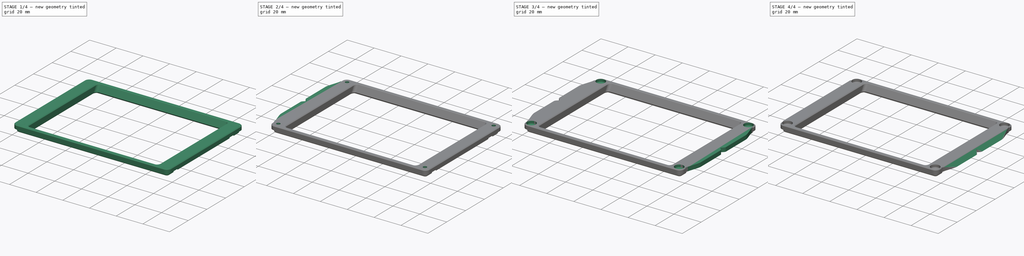
[diagram: build sequence overview — one tinted view per stage of 4, left to right]
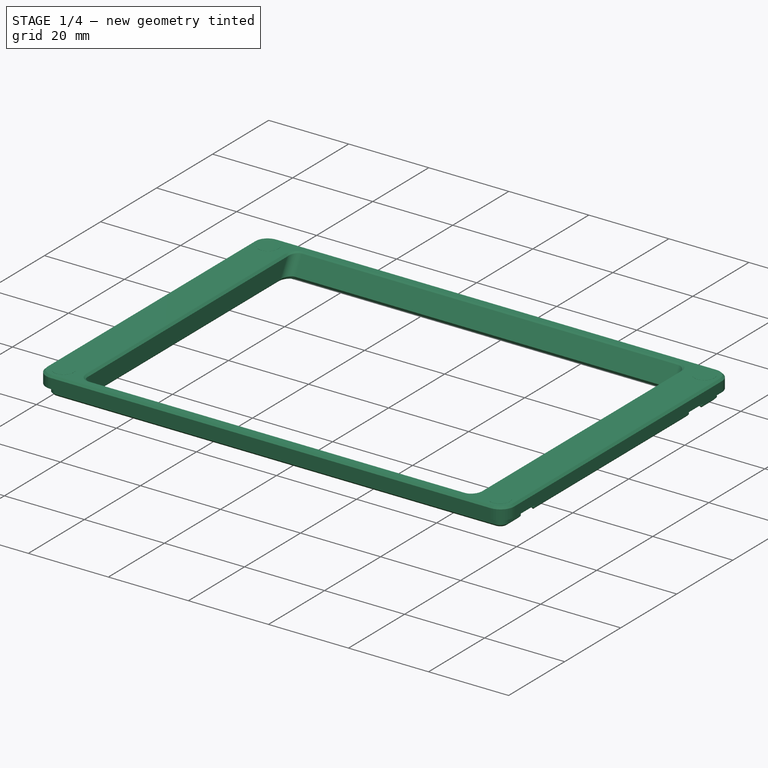
[diagram: stage 1 of 4 — iso view after this stage's code; geometry added in this stage tinted green]
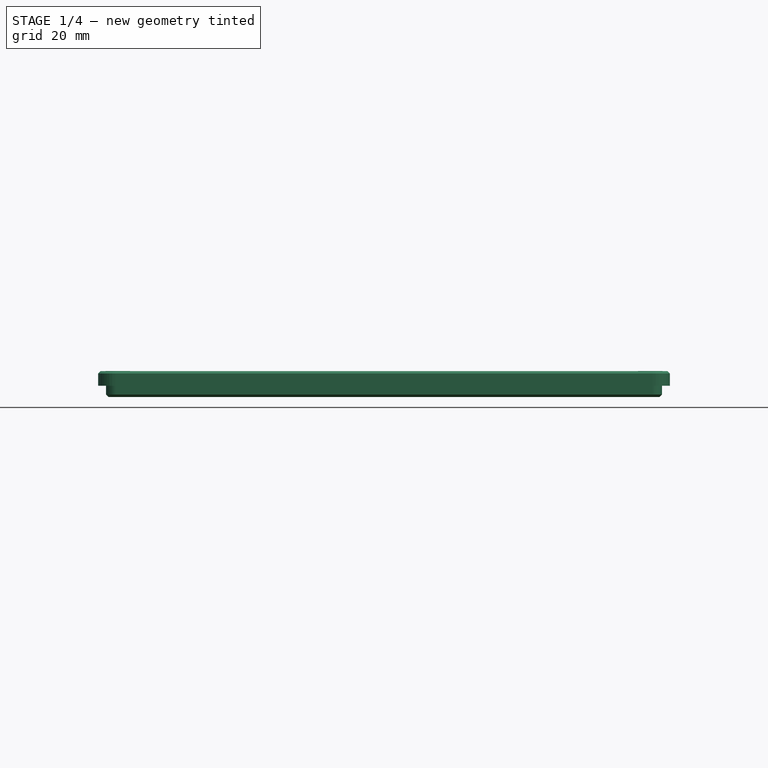
[diagram: stage 1 of 4 — front view after this stage's code; geometry added in this stage tinted green]
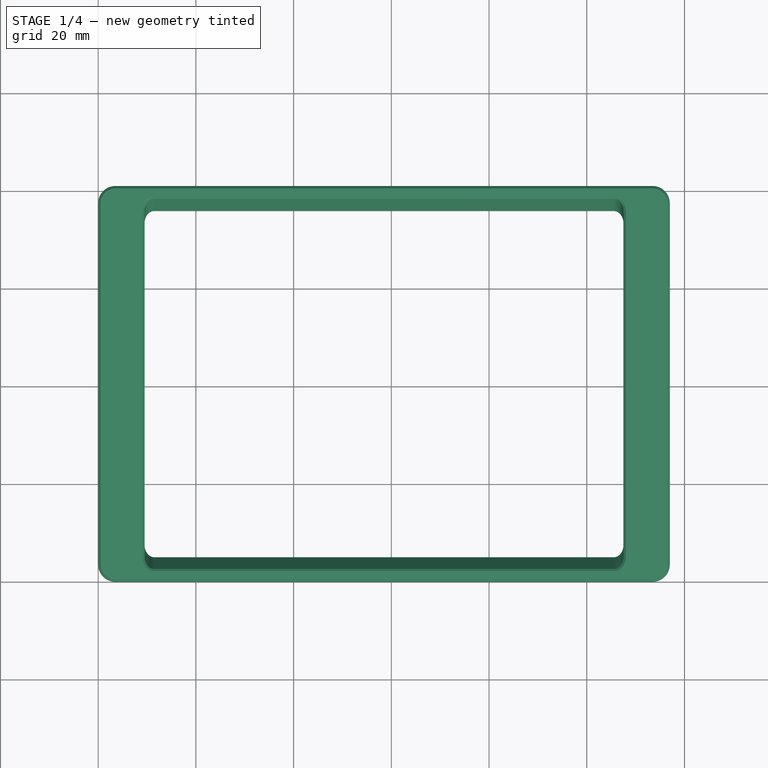
[diagram: stage 1 of 4 — top view after this stage's code; geometry added in this stage tinted green]
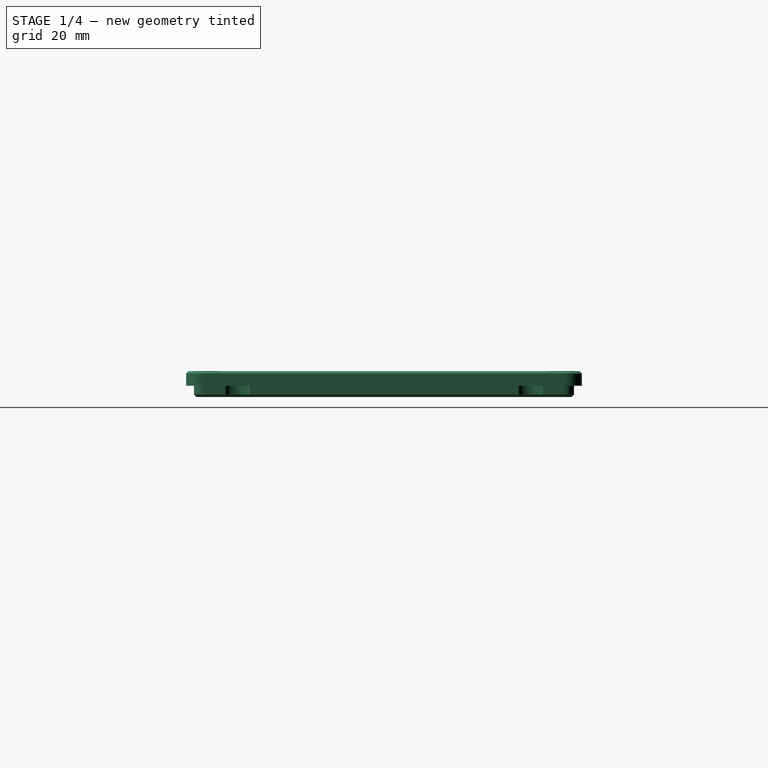
[diagram: stage 1 of 4 — right view after this stage's code; geometry added in this stage tinted green]
FCSTD DOCUMENT  (FreeCAD 1.0R39109 (Git))
Label: light-scan-mount
License: All rights reserved
LicenseURL: https://en.wikipedia.org/wiki/All_rights_reserved
objects: Sketcher::SketchObject×7, PartDesign::Pocket×3, PartDesign::Pad×2, PartDesign::Mirrored×2, Part::Feature×1, Part::Refine×1, PartDesign::FeatureBase×1, PartDesign::Plane×1, PartDesign::Chamfer×1, PartDesign::Body×1
note: 42 computed .brp shape members not serialized (recipe doc carries the construction recipe); baked Part::Feature solids carry a one-line shape summary decoded from their .brp

FEATURE [Part::Feature] _4d_p0020_diffuser_cover_plate001_solid  label="_4d_p0020_diffuser_cover_plate001 (Solid)"
  shape: bbox 117 x 81 x 5.3 mm, 3872 faces (baked)
FEATURE [Part::Refine] _4d_p0020_diffuser_cover_plate001_solid001  label="_4d_p0020_diffuser_cover_plate001 (Solid)001"
  Source = -> _4d_p0020_diffuser_cover_plate001_solid
FEATURE [PartDesign::FeatureBase] BaseFeature
  BaseFeature = -> _4d_p0020_diffuser_cover_plate001_solid001
  Suppressed = false
FEATURE [Sketcher::SketchObject] Sketch
  ArcFitTolerance = 1e-06
  AttachmentSupport = -> [XY_Plane]
  FullyConstrained = true
  MakeInternals = false
  MapMode = 5
  sketch-geometry (8):
    g0: LineSegment [constr] StartX=4 StartY=77 StartZ=0 EndX=4 EndY=4 EndZ=0
    g1: LineSegment [constr] StartX=4 StartY=4 StartZ=0 EndX=113 EndY=4 EndZ=0
    g2: LineSegment [constr] StartX=113 StartY=4 StartZ=0 EndX=113 EndY=77 EndZ=0
    g3: LineSegment [constr] StartX=113 StartY=77 StartZ=0 EndX=4 EndY=77 EndZ=0
    g4: Circle CenterX=4 CenterY=4 CenterZ=0 NormalX=0 NormalY=0 NormalZ=1 AngleXU=0 Radius=2.5
    g5: Circle CenterX=4 CenterY=77 CenterZ=0 NormalX=0 NormalY=0 NormalZ=1 AngleXU=0 Radius=2.5
    g6: Circle CenterX=113 CenterY=77 CenterZ=0 NormalX=0 NormalY=0 NormalZ=1 AngleXU=0 Radius=2.5
    g7: Circle CenterX=113 CenterY=4 CenterZ=0 NormalX=0 NormalY=0 NormalZ=1 AngleXU=0 Radius=2.5
  constraints (20):
    c: Coincident(g0,g1)
    c: Coincident(g1,g2)
    c: Coincident(g2,g3)
    c: Coincident(g3,g0)
    c: Vertical(g0)
    c: Vertical(g2)
    c: Horizontal(g1)
    c: Horizontal(g3)
    c: DistanceX(g3,g3) = 109
    c: DistanceY(g0,g0) = 73
    c: Distance(g0,g-2) = 4
    c: DistanceY(g-1,g0) = 4
    c: Coincident(g4,g0)
    c: Diameter(g4) = 5
    c: Coincident(g5,g0)
    c: Coincident(g6,g2)
    c: Coincident(g7,g1)
    c: Equal(g7,g4)
    c: Equal(g4,g5)
    c: Equal(g4,g6)
FEATURE [Sketcher::SketchObject] Sketch001
  ArcFitTolerance = 1e-06
  AttachmentSupport = -> [XY_Plane]
  FullyConstrained = true
  MakeInternals = false
  MapMode = 5
  sketch-geometry (8):
    g0: LineSegment [constr] StartX=4 StartY=77 StartZ=0 EndX=4 EndY=4 EndZ=0
    g1: LineSegment [constr] StartX=4 StartY=4 StartZ=0 EndX=113 EndY=4 EndZ=0
    g2: LineSegment [constr] StartX=113 StartY=4 StartZ=0 EndX=113 EndY=77 EndZ=0
    g3: LineSegment [constr] StartX=113 StartY=77 StartZ=0 EndX=4 EndY=77 EndZ=0
    g4: Circle CenterX=4 CenterY=4 CenterZ=0 NormalX=0 NormalY=0 NormalZ=1 AngleXU=0 Radius=1.35
    g5: Circle CenterX=4 CenterY=77 CenterZ=0 NormalX=0 NormalY=0 NormalZ=1 AngleXU=0 Radius=1.35
    g6: Circle CenterX=113 CenterY=77 CenterZ=0 NormalX=0 NormalY=0 NormalZ=1 AngleXU=0 Radius=1.35
    g7: Circle CenterX=113 CenterY=4 CenterZ=0 NormalX=0 NormalY=0 NormalZ=1 AngleXU=0 Radius=1.35
  constraints (20):
    c: Coincident(g0,g1)
    c: Coincident(g1,g2)
    c: Coincident(g2,g3)
    c: Coincident(g3,g0)
    c: Vertical(g0)
    c: Vertical(g2)
    c: Horizontal(g1)
    c: Horizontal(g3)
    c: DistanceX(g3,g3) = 109
    c: DistanceY(g0,g0) = 73
    c: Distance(g0,g-2) = 4
    c: DistanceY(g-1,g0) = 4
    c: Coincident(g4,g0)
    c: Diameter(g4) = 2.7
    c: Coincident(g5,g0)
    c: Coincident(g6,g2)
    c: Coincident(g7,g1)
    c: Equal(g7,g4)
    c: Equal(g4,g5)
    c: Equal(g4,g6)
FEATURE [PartDesign::Pad] Pad
  BaseFeature = -> BaseFeature
  Direction = (0,0,1)
  Length = 5.32
  Length2 = -3
  Profile = -> Sketch
  ReferenceAxis = -> Sketch [N_Axis]
  Refine = true
  Suppressed = false
  Type = 4
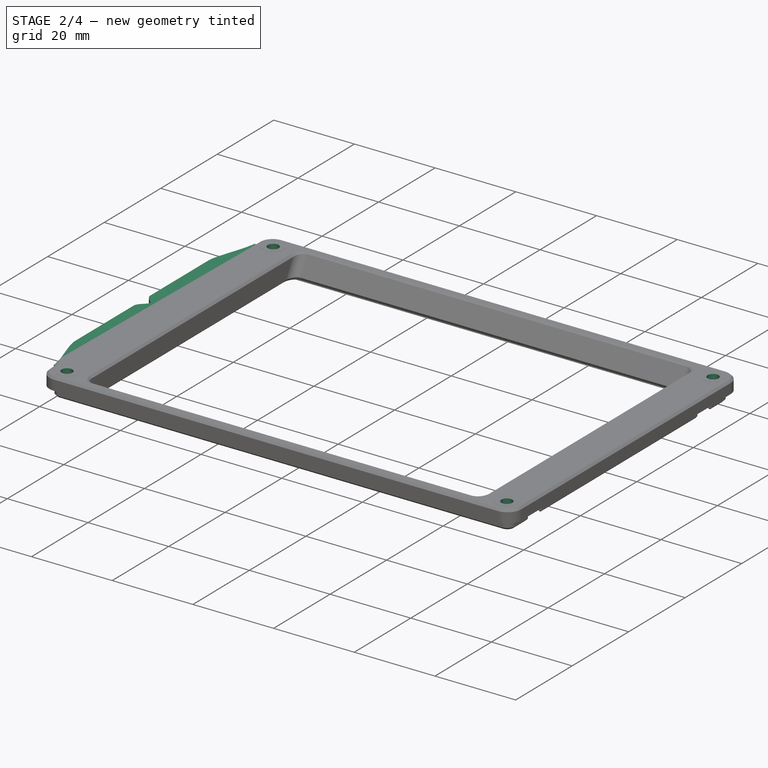
[diagram: stage 2 of 4 — iso view after this stage's code; geometry added in this stage tinted green]
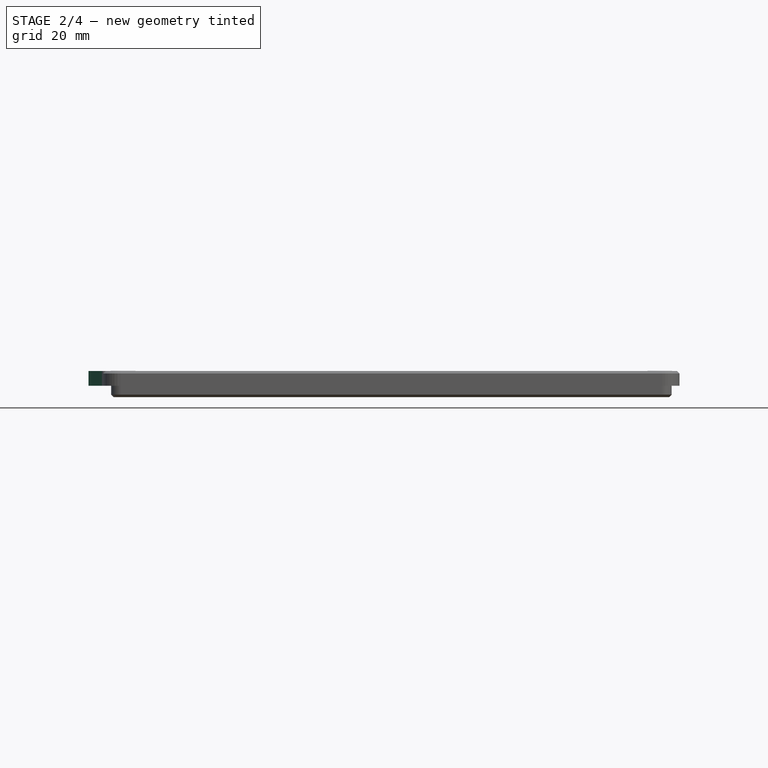
[diagram: stage 2 of 4 — front view after this stage's code; geometry added in this stage tinted green]
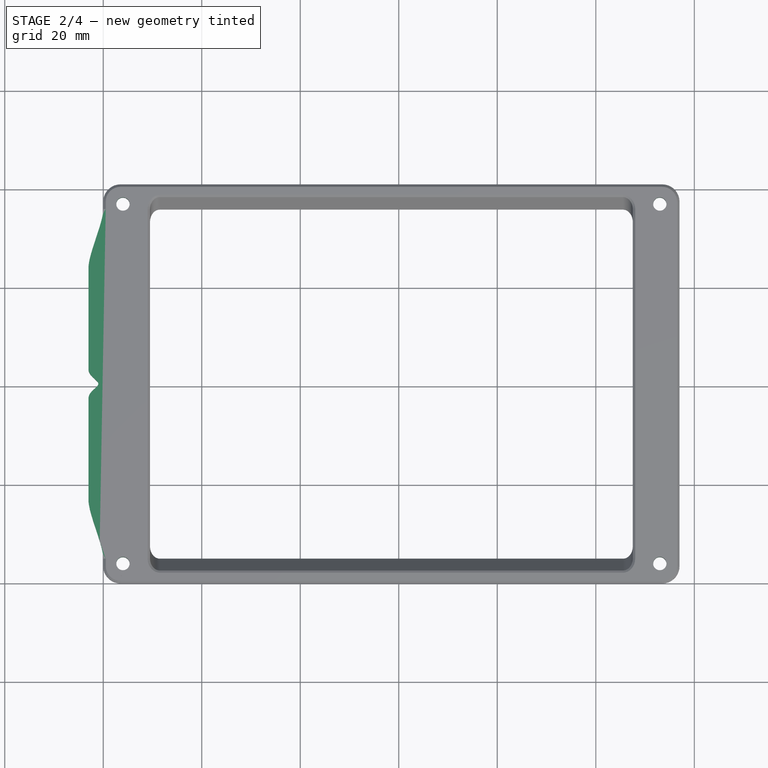
[diagram: stage 2 of 4 — top view after this stage's code; geometry added in this stage tinted green]
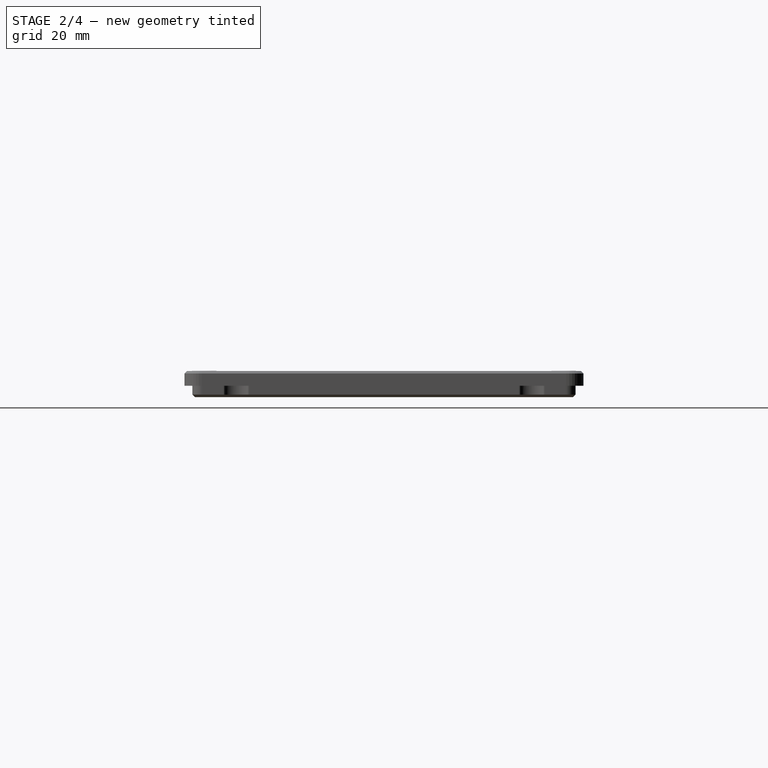
[diagram: stage 2 of 4 — right view after this stage's code; geometry added in this stage tinted green]
FEATURE [PartDesign::Pocket] Pocket
  BaseFeature = -> Pad
  Direction = (0,0,-1)
  Length = 5
  Length2 = 5
  Midplane = true
  Profile = -> Sketch001
  ReferenceAxis = -> Sketch001 [N_Axis]
  Refine = true
  Suppressed = false
  Type = 1
FEATURE [Sketcher::SketchObject] Sketch002
  ArcFitTolerance = 1e-06
  AttachmentSupport = -> [XY_Plane]
  FullyConstrained = true
  MakeInternals = false
  MapMode = 5
  sketch-geometry (31):
    g0: LineSegment [constr] StartX=0 StartY=76 StartZ=0 EndX=0 EndY=5 EndZ=0
    g1: LineSegment StartX=0 StartY=5 StartZ=0 EndX=1 EndY=5 EndZ=0
    g2: LineSegment StartX=1 StartY=5 StartZ=0 EndX=1 EndY=76 EndZ=0
    g3: LineSegment StartX=1 StartY=76 StartZ=0 EndX=0 EndY=76 EndZ=0
    g4: LineSegment [constr] StartX=-3 StartY=64 StartZ=0 EndX=-3 EndY=17 EndZ=0
    g5: LineSegment [constr] StartX=-3 StartY=40.5 StartZ=0 EndX=1 EndY=40.5 EndZ=0
    g6-g9: Circle [constr] x4 (B-spline internal-alignment scaffolding for g10; pole/knot coordinates omitted)
    g10: BSplineCurve PolesCount=4 KnotsCount=2 Degree=3 IsPeriodic=0
    g11: GeomPoint [constr] X=0 Y=76 Z=0
    g12: GeomPoint [constr] X=-3 Y=64 Z=0
    g13-g16: Circle [constr] x4 (B-spline internal-alignment scaffolding for g17; pole/knot coordinates omitted)
    g17: BSplineCurve PolesCount=4 KnotsCount=2 Degree=3 IsPeriodic=0
    g18: GeomPoint [constr] X=0 Y=5 Z=0
    g19: GeomPoint [constr] X=-3 Y=17 Z=0
    g20: LineSegment StartX=-3 StartY=17 StartZ=0 EndX=-3 EndY=37.5 EndZ=0
    g21: LineSegment StartX=-3 StartY=43.5 StartZ=0 EndX=-3 EndY=64 EndZ=0
    g22-g26: Circle [constr] x5 (B-spline internal-alignment scaffolding for g27; pole/knot coordinates omitted)
    g27: BSplineCurve PolesCount=5 KnotsCount=3 Degree=3 IsPeriodic=0
    g28: GeomPoint [constr] X=-3 Y=43.5 Z=0
    g29: GeomPoint [constr] X=-1 Y=40.5 Z=0
    g30: GeomPoint [constr] X=-3 Y=37.5 Z=0
  constraints (60):
    c: Coincident(g0,g1)
    c: Coincident(g1,g2)
    c: Coincident(g2,g3)
    c: Coincident(g3,g0)
    c: Vertical(g0)
    c: Vertical(g2)
    c: Horizontal(g1)
    c: Horizontal(g3)
    c: Vertical(g4)
    c: Symmetric(g4,g4,g5)
    c: Symmetric(g2,g2,g5)
    c: Horizontal(g5)
    c: Distance(g5,g5) = 4
    c: Weight(g6) = 1
    c: Equal(g6,g7)
    c: Equal(g6,g8)
    c: Equal(g6,g9)
    c: InternalAlignment(g6-g9 -> g10) x4
    c: InternalAlignment(g11,g10)
    c: InternalAlignment(g12,g10)
    c: Coincident(g6,g0)
    c: PointOnObject(g7,g0)
    c: Coincident(g9,g4)
    c: Weight(g13) = 1
    c: Equal(g13,g14)
    c: Equal(g13,g15)
    c: Equal(g13,g16)
    c: InternalAlignment(g13-g16 -> g17) x4
    c: InternalAlignment(g18,g17)
    c: InternalAlignment(g19,g17)
    c: Coincident(g13,g0)
    c: Coincident(g16,g4)
    c: PointOnObject(g15,g4)
    c: Symmetric(g14,g7,g5)
    c: DistanceY(g17,g14) = 3
    c: Symmetric(g8,g15,g5)
    c: DistanceY(g17,g17) = 12
    c: DistanceY(g15,g17) = 3
    c: DistanceY(g-1,g17) = 5
    c: DistanceX(g17,g-1) = 0
    c: DistanceX(g1,g1) = 1
    c: DistanceY(g2,g2) = 71
    c: Coincident(g20,g17)
    c: PointOnObject(g21,g4)
    c: Coincident(g21,g10)
    c: Weight(g22) = 1
    c: Equal(g22, g23-g26) x4
    c: InternalAlignment(g22-g26 -> g27) x5
    c: InternalAlignment(g28,g27)
    c: InternalAlignment(g29,g27)
    c: InternalAlignment(g30,g27)
    c: Coincident(g22,g21)
    c: PointOnObject(g24,g5)
    c: Coincident(g26,g20)
    c: Symmetric(g27,g27,g5)
    c: Symmetric(g25,g23,g5)
    c: DistanceY(g27,g27) = 6
    c: PointOnObject(g23,g4)
    c: DistanceY(g27,g25) = 1.5
    c: Distance(g29,g4) = 2
FEATURE [PartDesign::Pad] Pad001
  BaseFeature = -> Pocket
  Direction = (0,0,1)
  Length = 5.3
  Length2 = -2.3
  Profile = -> Sketch002
  ReferenceAxis = -> Sketch002 [N_Axis]
  Refine = true
  Suppressed = false
  Type = 4
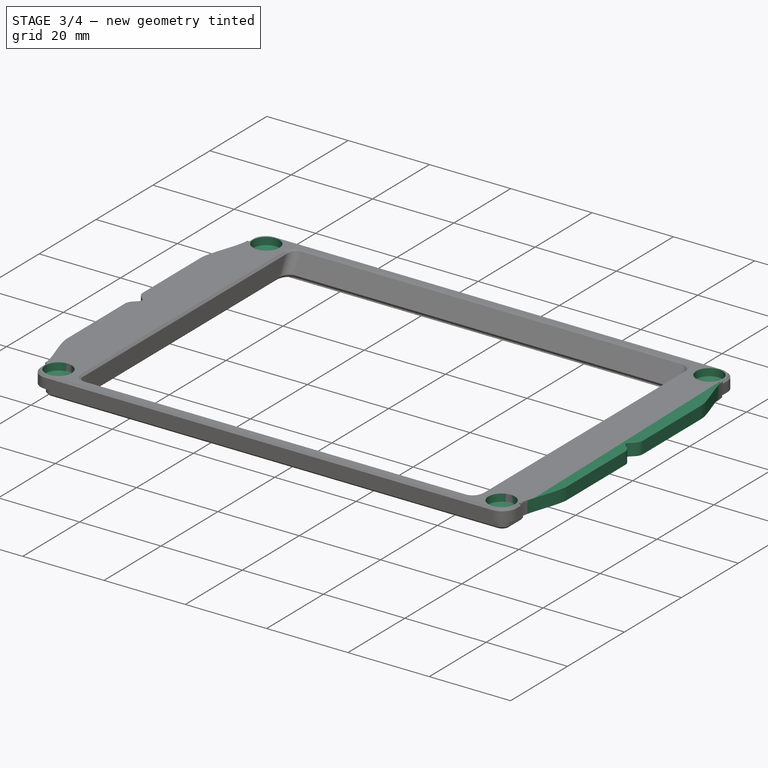
[diagram: stage 3 of 4 — iso view after this stage's code; geometry added in this stage tinted green]
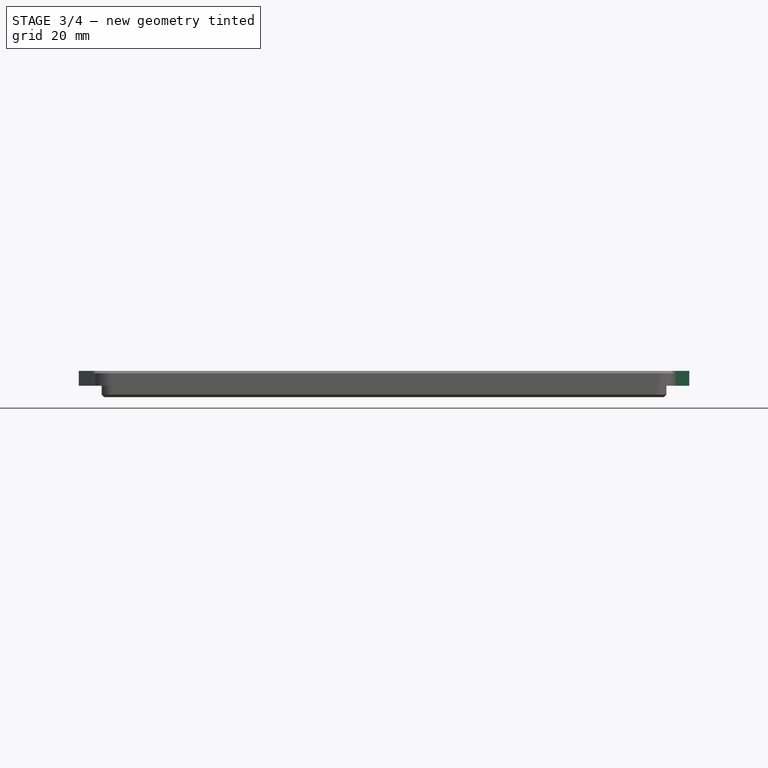
[diagram: stage 3 of 4 — front view after this stage's code; geometry added in this stage tinted green]
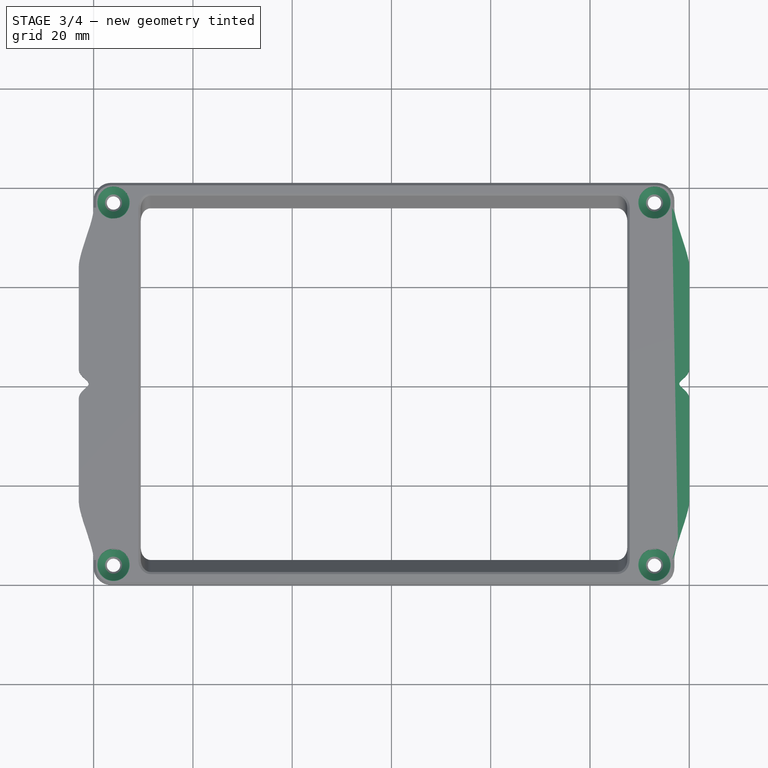
[diagram: stage 3 of 4 — top view after this stage's code; geometry added in this stage tinted green]
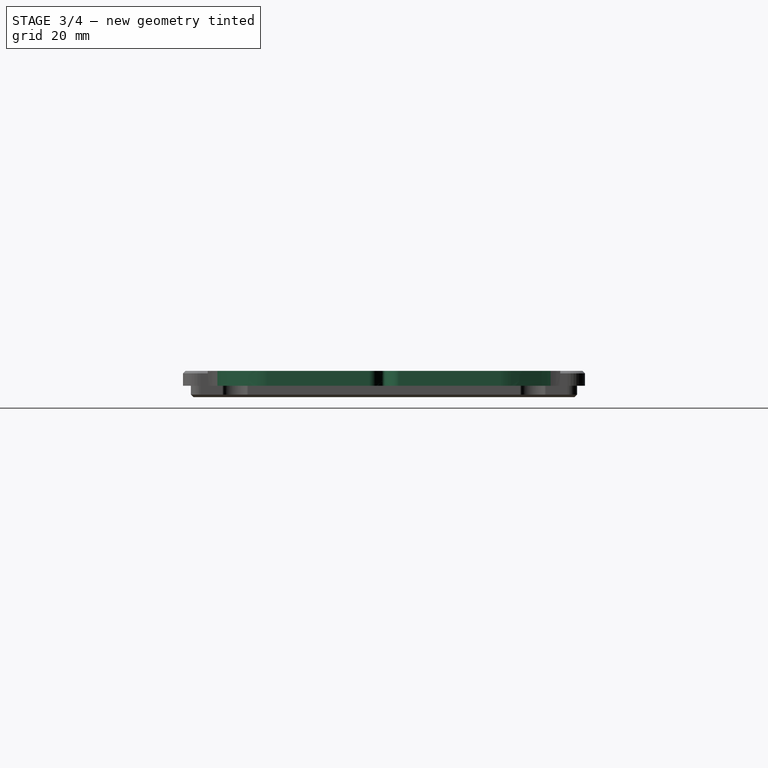
[diagram: stage 3 of 4 — right view after this stage's code; geometry added in this stage tinted green]
FEATURE [PartDesign::Plane] DatumPlane
  AttachmentOffset = pos=(0,0,58.5) rot=(0,0,1;0rad)
  AttachmentSupport = -> [YZ_Plane]
  Length = 60
  MapMode = 5
  Placement = pos=(58.5,0,0) rot=(0.57735,0.57735,0.57735;2.0944rad)
  ResizeMode = 0
  Width = 60
FEATURE [Sketcher::SketchObject] Sketch003
  ArcFitTolerance = 1e-06
  AttachmentSupport = -> [XY_Plane]
  FullyConstrained = true
  MakeInternals = false
  MapMode = 5
  sketch-geometry (8):
    g0: LineSegment [constr] StartX=4 StartY=77 StartZ=0 EndX=4 EndY=4 EndZ=0
    g1: LineSegment [constr] StartX=4 StartY=4 StartZ=0 EndX=113 EndY=4 EndZ=0
    g2: LineSegment [constr] StartX=113 StartY=4 StartZ=0 EndX=113 EndY=77 EndZ=0
    g3: LineSegment [constr] StartX=113 StartY=77 StartZ=0 EndX=4 EndY=77 EndZ=0
    g4: Circle CenterX=4 CenterY=4 CenterZ=0 NormalX=0 NormalY=0 NormalZ=1 AngleXU=0 Radius=3.25
    g5: Circle CenterX=4 CenterY=77 CenterZ=0 NormalX=0 NormalY=0 NormalZ=1 AngleXU=0 Radius=3.25
    g6: Circle CenterX=113 CenterY=77 CenterZ=0 NormalX=0 NormalY=0 NormalZ=1 AngleXU=0 Radius=3.25
    g7: Circle CenterX=113 CenterY=4 CenterZ=0 NormalX=0 NormalY=0 NormalZ=1 AngleXU=0 Radius=3.25
  constraints (20):
    c: Coincident(g0,g1)
    c: Coincident(g1,g2)
    c: Coincident(g2,g3)
    c: Coincident(g3,g0)
    c: Vertical(g0)
    c: Vertical(g2)
    c: Horizontal(g1)
    c: Horizontal(g3)
    c: DistanceX(g3,g3) = 109
    c: DistanceY(g0,g0) = 73
    c: Distance(g0,g-2) = 4
    c: DistanceY(g-1,g0) = 4
    c: Coincident(g4,g0)
    c: Diameter(g4) = 6.5
    c: Coincident(g5,g0)
    c: Coincident(g6,g2)
    c: Coincident(g7,g1)
    c: Equal(g7,g4)
    c: Equal(g4,g5)
    c: Equal(g4,g6)
FEATURE [Sketcher::SketchObject] Sketch004
  ArcFitTolerance = 1e-06
  AttachmentSupport = -> [XZ_Plane]
  FullyConstrained = true
  MakeInternals = false
  MapMode = 5
  Placement = pos=(0,0,0) rot=(1,0,0;1.5708rad)
  sketch-geometry (3):
    g0: LineSegment StartX=0 StartY=5.3 StartZ=0 EndX=-3 EndY=2.3 EndZ=0
    g1: LineSegment StartX=-3 StartY=2.3 StartZ=0 EndX=-3 EndY=5.3 EndZ=0
    g2: LineSegment StartX=-3 StartY=5.3 StartZ=0 EndX=0 EndY=5.3 EndZ=0
  constraints (9):
    c: PointOnObject(g0,g-2)
    c: Coincident(g0,g1)
    c: Vertical(g1)
    c: Coincident(g1,g2)
    c: Coincident(g2,g0)
    c: Horizontal(g2)
    c: Angle(g0,g1) = 0.785398
    c: DistanceY(g-1,g0) = 5.3
    c: DistanceX(g2,g2) = 3
FEATURE [PartDesign::Mirrored] Mirrored
  BaseFeature = -> Pad001
  MirrorPlane = -> DatumPlane
  Originals = -> [Pad001]
  Refine = true
  Suppressed = false
  TransformMode = 0
FEATURE [PartDesign::Pocket] Pocket001
  BaseFeature = -> Mirrored
  Direction = (0,0,-1)
  Length = 7
  Length2 = -3.5
  Profile = -> Sketch003
  ReferenceAxis = -> Sketch003 [N_Axis]
  Refine = true
  Reversed = true
  Suppressed = false
  Type = 4
FEATURE [PartDesign::Chamfer] Chamfer
  Angle = 45
  Base = -> Pocket001 [Edge2319,Edge2169,Edge2167,Edge2171]
  BaseFeature = -> Pocket001
  ChamferType = 0
  FlipDirection = false
  Refine = true
  Size = 1.8
  Size2 = 1
  SupportTransform = false
  Suppressed = false
  UseAllEdges = false
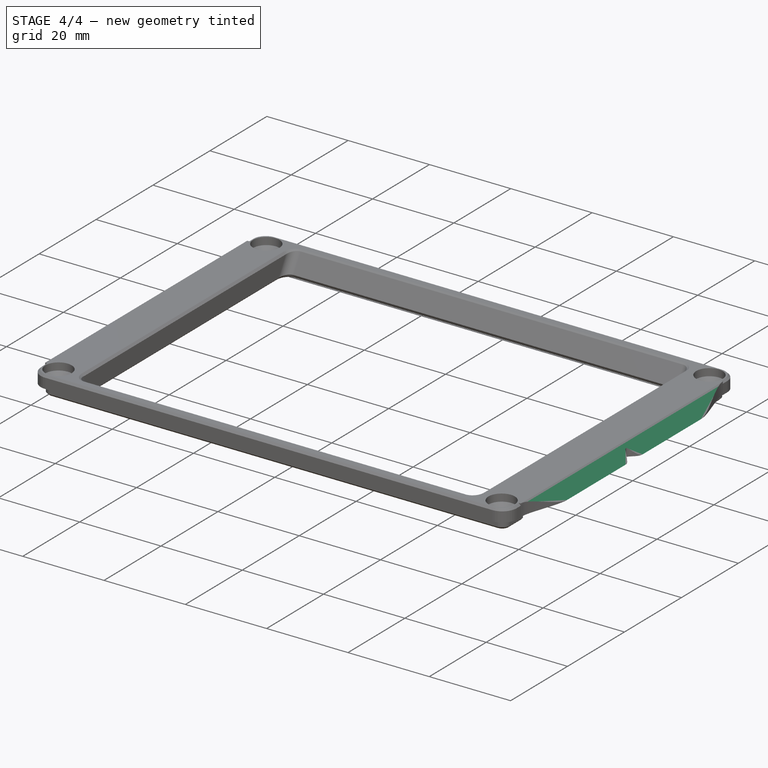
[diagram: stage 4 of 4 — iso view after this stage's code; geometry added in this stage tinted green]
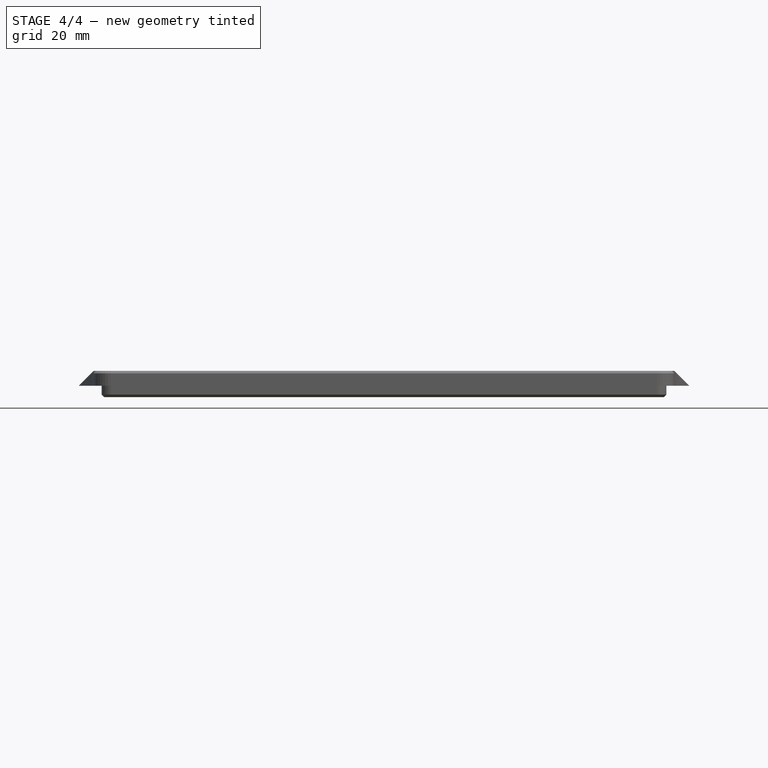
[diagram: stage 4 of 4 — front view after this stage's code; geometry added in this stage tinted green]
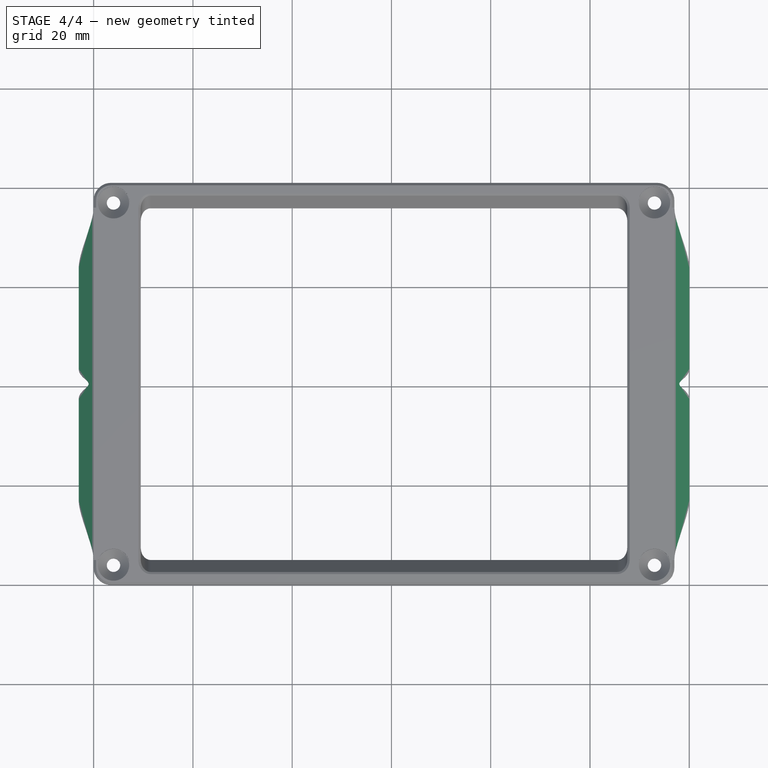
[diagram: stage 4 of 4 — top view after this stage's code; geometry added in this stage tinted green]
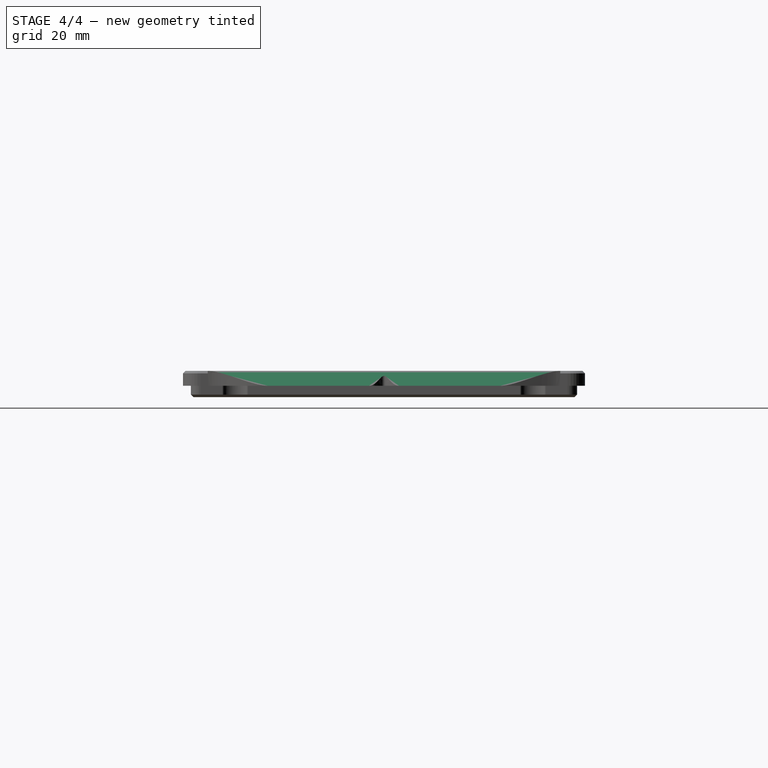
[diagram: stage 4 of 4 — right view after this stage's code; geometry added in this stage tinted green]
FEATURE [PartDesign::Pocket] Pocket002
  BaseFeature = -> Chamfer
  Direction = (0,1,-2e-16)
  Length = 5
  Length2 = 5
  Profile = -> Sketch004
  ReferenceAxis = -> Sketch004 [N_Axis]
  Refine = true
  Suppressed = false
  Type = 1
FEATURE [PartDesign::Mirrored] Mirrored001
  BaseFeature = -> Pocket002
  MirrorPlane = -> DatumPlane
  Originals = -> [Pocket002]
  Refine = true
  Suppressed = false
  TransformMode = 0
FEATURE [Sketcher::SketchObject] Sketch005
  ArcFitTolerance = 1e-06
  AttachmentSupport = -> [XY_Plane]
  FullyConstrained = true
  MakeInternals = false
  MapMode = 5
  sketch-geometry (5):
    g0: Circle CenterX=4.7 CenterY=10.5 CenterZ=0 NormalX=0 NormalY=0 NormalZ=1 AngleXU=0 Radius=3.2
    g1: LineSegment [constr] StartX=4.7 StartY=10.5 StartZ=0 EndX=112.3 EndY=10.5 EndZ=0
    g2: Circle CenterX=112.3 CenterY=10.5 CenterZ=0 NormalX=0 NormalY=0 NormalZ=1 AngleXU=0 Radius=3.2
    g3: LineSegment [constr] StartX=4.7 StartY=10.5 StartZ=0 EndX=4.7 EndY=70.5 EndZ=0
    g4: Circle CenterX=4.7 CenterY=70.5 CenterZ=0 NormalX=0 NormalY=0 NormalZ=1 AngleXU=0 Radius=3.2
  constraints (13):
    c: Diameter(g0) = 6.4
    c: DistanceY(g-1,g0) = 10.5
    c: DistanceX(g-1,g0) = 4.7
    c: Coincident(g1,g0)
    c: Horizontal(g1)
    c: Coincident(g2,g1)
    c: Equal(g2,g0)
    c: DistanceX(g1,g1) = 107.6
    c: Coincident(g3,g0)
    c: Vertical(g3)
    c: Coincident(g4,g3)
    c: Equal(g4,g0)
    c: DistanceY(g3,g3) = 60
FEATURE [Sketcher::SketchObject] Sketch006
  ArcFitTolerance = 1e-06
  AttachmentSupport = -> [XY_Plane]
  FullyConstrained = true
  MakeInternals = false
  MapMode = 5
  sketch-geometry (24):
    g0: LineSegment StartX=3.5 StartY=0 StartZ=0 EndX=113.5 EndY=0 EndZ=0
    g1: LineSegment StartX=117 StartY=3.5 StartZ=0 EndX=117 EndY=77.5 EndZ=0
    g2: LineSegment StartX=113.5 StartY=81 StartZ=0 EndX=3.5 EndY=81 EndZ=0
    g3: LineSegment StartX=0 StartY=77.5 StartZ=0 EndX=0 EndY=3.5 EndZ=0
    g4: ArcOfCircle CenterX=113.5 CenterY=77.5 CenterZ=0 NormalX=0 NormalY=0 NormalZ=1 AngleXU=0 Radius=3.5 StartAngle=2e-16 EndAngle=1.5708
    g5: GeomPoint [constr] X=117 Y=81 Z=0
    g6: ArcOfCircle CenterX=3.5 CenterY=77.5 CenterZ=0 NormalX=0 NormalY=0 NormalZ=1 AngleXU=0 Radius=3.5 StartAngle=1.5708 EndAngle=3.14159
    g7: GeomPoint [constr] X=0 Y=81 Z=0
    g8: ArcOfCircle CenterX=113.5 CenterY=3.5 CenterZ=0 NormalX=0 NormalY=0 NormalZ=1 AngleXU=0 Radius=3.5 StartAngle=4.71239 EndAngle=6.28319
    g9: GeomPoint [constr] X=117 Y=0 Z=0
    g10: ArcOfCircle CenterX=3.5 CenterY=3.5 CenterZ=0 NormalX=0 NormalY=0 NormalZ=1 AngleXU=0 Radius=3.5 StartAngle=3.14159 EndAngle=4.71239
    g11: GeomPoint [constr] X=0 Y=0 Z=0
    g12: LineSegment StartX=113.4 StartY=79.4 StartZ=0 EndX=3.6 EndY=79.4 EndZ=0
    g13: LineSegment StartX=1.6 StartY=77.4 StartZ=0 EndX=1.6 EndY=3.6 EndZ=0
    g14: LineSegment StartX=3.6 StartY=1.6 StartZ=0 EndX=113.4 EndY=1.6 EndZ=0
    g15: LineSegment StartX=115.4 StartY=3.6 StartZ=0 EndX=115.4 EndY=77.4 EndZ=0
    g16: ArcOfCircle CenterX=3.6 CenterY=77.4 CenterZ=0 NormalX=0 NormalY=0 NormalZ=1 AngleXU=0 Radius=2 StartAngle=1.5708 EndAngle=3.14159
    g17: GeomPoint [constr] X=1.6 Y=79.4 Z=0
    g18: ArcOfCircle CenterX=3.6 CenterY=3.6 CenterZ=0 NormalX=0 NormalY=0 NormalZ=1 AngleXU=0 Radius=2 StartAngle=3.14159 EndAngle=4.71239
    g19: GeomPoint [constr] X=1.6 Y=1.6 Z=0
    g20: ArcOfCircle CenterX=113.4 CenterY=3.6 CenterZ=0 NormalX=0 NormalY=0 NormalZ=1 AngleXU=0 Radius=2 StartAngle=4.71239 EndAngle=6.28319
    g21: GeomPoint [constr] X=115.4 Y=1.6 Z=0
    g22: ArcOfCircle CenterX=113.4 CenterY=77.4 CenterZ=0 NormalX=0 NormalY=0 NormalZ=1 AngleXU=0 Radius=2 StartAngle=6e-16 EndAngle=1.5708
    g23: GeomPoint [constr] X=115.4 Y=79.4 Z=0
  constraints (55):
    c: Horizontal(g0)
    c: Horizontal(g2)
    c: Vertical(g1)
    c: Vertical(g3)
    c: Coincident(g11,g-1)
    c: DistanceY(g9,g5) = 81
    c: DistanceX(g7,g5) = 117
    c: PointOnObject(g5,g1)
    c: PointOnObject(g5,g2)
    c: Tangent(g1,g4) = -1.5708
    c: Tangent(g2,g4) = -1.5708
    c: PointOnObject(g7,g2)
    c: PointOnObject(g7,g3)
    c: Tangent(g2,g6) = -1.5708
    c: Tangent(g3,g6) = -1.5708
    c: PointOnObject(g9,g0)
    c: PointOnObject(g9,g1)
    c: Tangent(g0,g8) = -1.5708
    c: Tangent(g1,g8) = -1.5708
    c: PointOnObject(g11,g0)
    c: PointOnObject(g11,g3)
    c: Tangent(g0,g10) = -1.5708
    c: Tangent(g3,g10) = -1.5708
    c: Equal(g10,g6)
    c: Equal(g10,g8)
    c: Equal(g10,g4)
    c: Radius(g10) = 3.5
    c: Horizontal(g12)
    c: Horizontal(g14)
    c: Vertical(g13)
    c: Vertical(g15)
    c: DistanceX(g-1,g19) = 1.6
    c: DistanceY(g-1,g19) = 1.6
    c: DistanceY(g19,g17) = 77.8
    c: DistanceX(g17,g23) = 113.8
    c: PointOnObject(g17,g12)
    c: PointOnObject(g17,g13)
    c: Tangent(g12,g16) = -1.5708
    c: Tangent(g13,g16) = -1.5708
    c: PointOnObject(g19,g13)
    c: PointOnObject(g19,g14)
    c: Tangent(g13,g18) = -1.5708
    c: Tangent(g14,g18) = -1.5708
    c: PointOnObject(g21,g14)
    c: PointOnObject(g21,g15)
    c: Tangent(g14,g20) = -1.5708
    c: Tangent(g15,g20) = -1.5708
    c: PointOnObject(g23,g12)
    c: PointOnObject(g23,g15)
    c: Tangent(g12,g22) = -1.5708
    c: Tangent(g15,g22) = -1.5708
    c: Equal(g20,g18)
    c: Equal(g18,g16)
    c: Equal(g18,g22)
    c: Radius(g18) = 2
FEATURE [PartDesign::Body] Body
  AllowCompound = false
  BaseFeature = -> _4d_p0020_diffuser_cover_plate001_solid001
  Group = -> [BaseFeature,Sketch,Sketch001,Pad,Pocket,Sketch002,Pad001,DatumPlane,Mirrored,Sketch003,Pocket001,Chamfer,Sketch004,Pocket002,Mirrored001,Sketch005,Sketch006]
  Origin = -> Origin
  Tip = -> Mirrored001
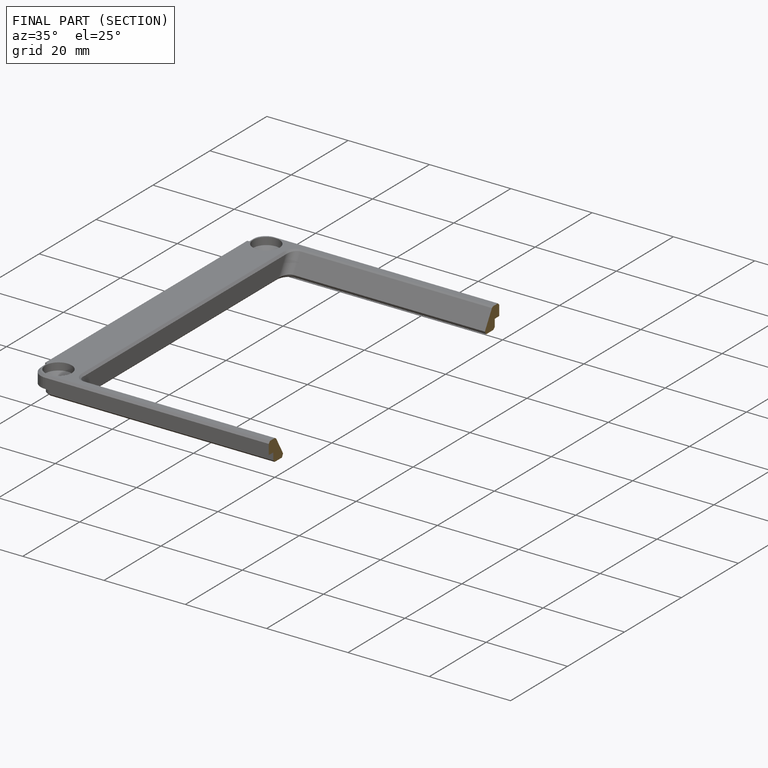
[diagram: finished part — half-section view (interior)]
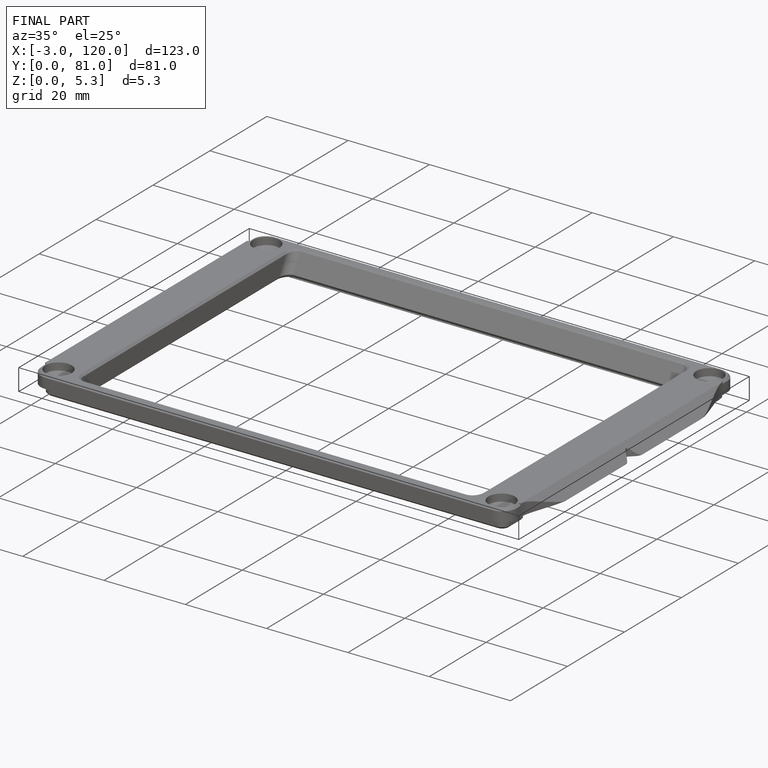
[diagram: finished part — iso view with bounding-box wireframe]
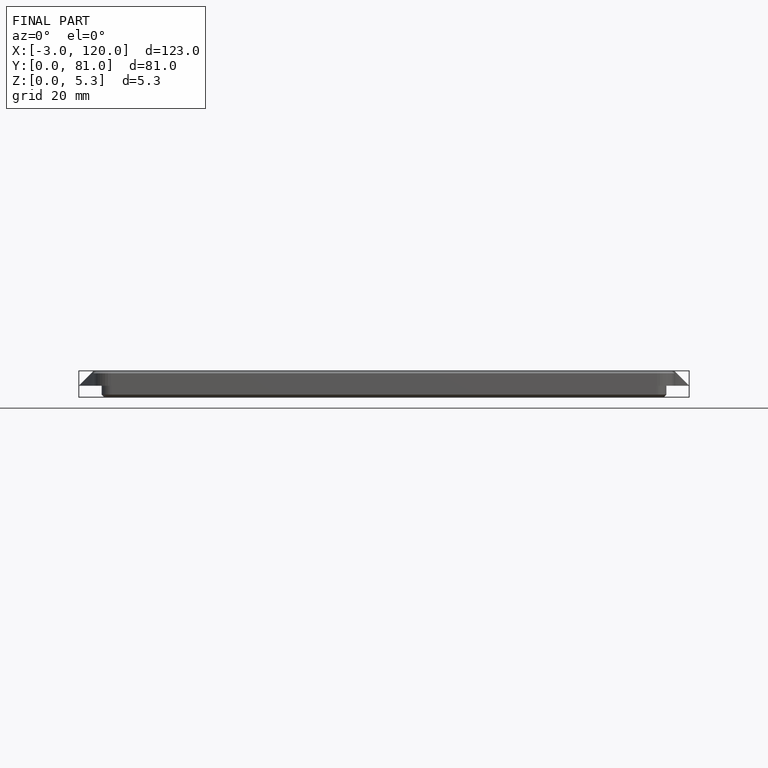
[diagram: finished part — front view with bounding-box wireframe]
